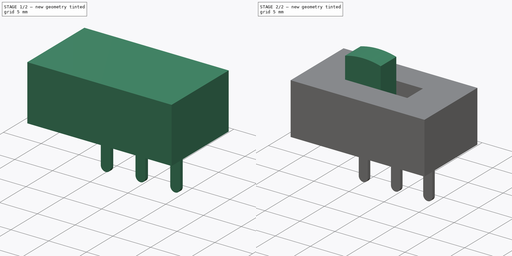
[diagram: build sequence overview — one tinted view per stage of 2, left to right]
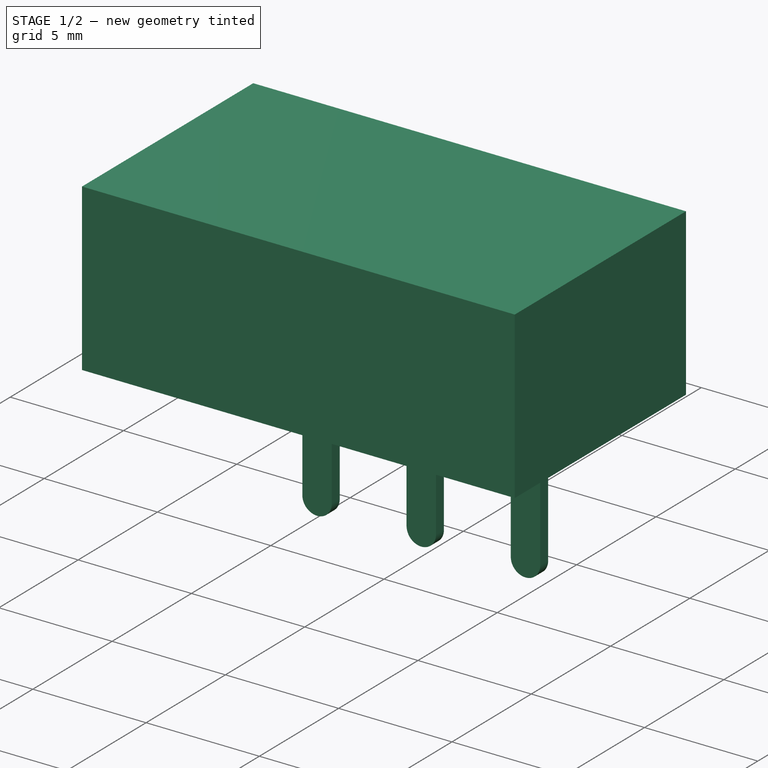
[diagram: stage 1 of 2 — iso view after this stage's code; geometry added in this stage tinted green]
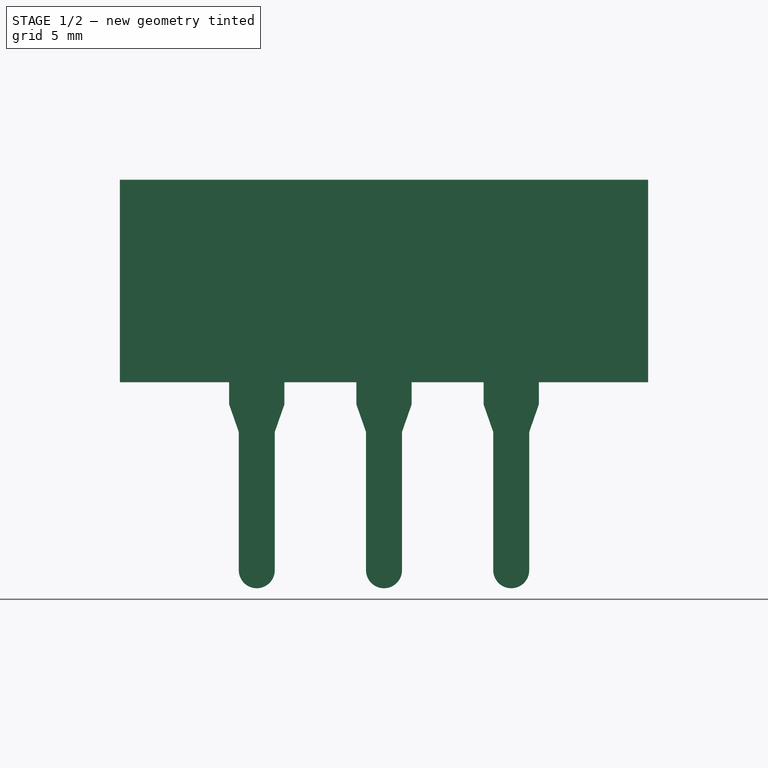
[diagram: stage 1 of 2 — front view after this stage's code; geometry added in this stage tinted green]
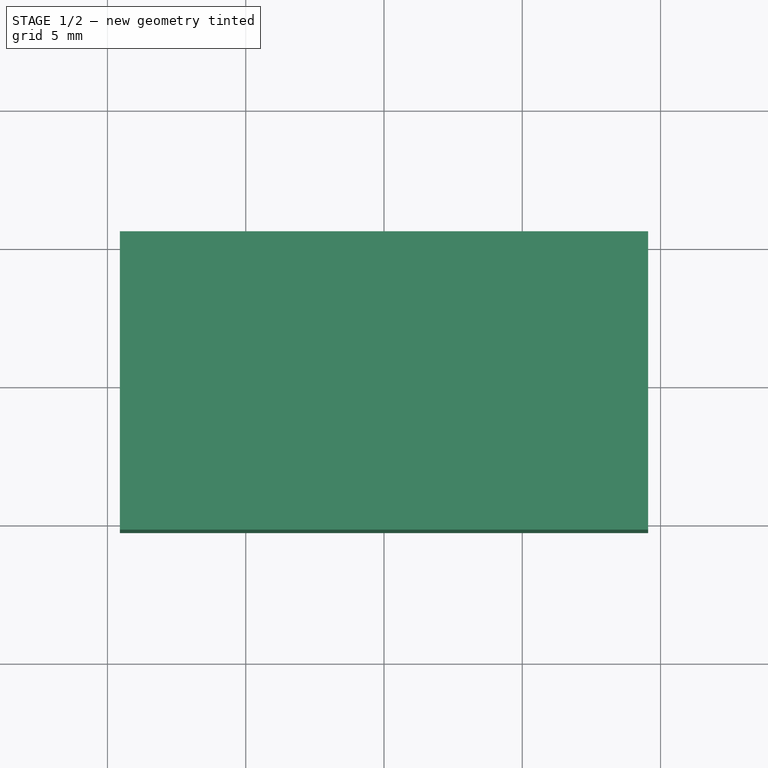
[diagram: stage 1 of 2 — top view after this stage's code; geometry added in this stage tinted green]
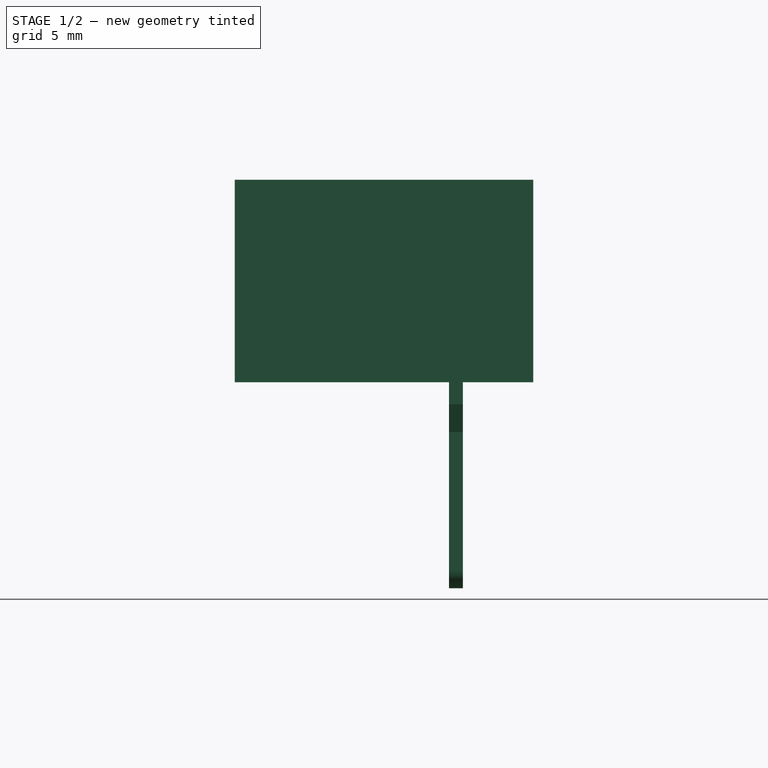
[diagram: stage 1 of 2 — right view after this stage's code; geometry added in this stage tinted green]
FCSTD DOCUMENT  (FreeCAD 0.20R29410 (Git))
Label: SlidingSwitch
License: All rights reserved
LicenseURL: http://en.wikipedia.org/wiki/All_rights_reserved
objects: Sketcher::SketchObject×4, PartDesign::Pad×2, PartDesign::Pocket×1, PartDesign::Body×1, App::DocumentObjectGroup×1, PartDesign::LinearPattern×1
note: 12 computed .brp shape members not serialized (recipe doc carries the construction recipe); baked Part::Feature solids carry a one-line shape summary decoded from their .brp

FEATURE [Sketcher::SketchObject] Sketch  label="Base"
  FullyConstrained = true
  MapMode = 5
  Support = -> [XY_Plane]
  sketch-geometry (5):
    g0: LineSegment StartX=-9.55 StartY=-5.395 StartZ=0 EndX=-9.55 EndY=5.395 EndZ=0
    g1: LineSegment StartX=-9.55 StartY=5.395 StartZ=0 EndX=9.55 EndY=5.395 EndZ=0
    g2: LineSegment StartX=9.55 StartY=5.395 StartZ=0 EndX=9.55 EndY=-5.395 EndZ=0
    g3: LineSegment StartX=9.55 StartY=-5.395 StartZ=0 EndX=-9.55 EndY=-5.395 EndZ=0
    g4: GeomPoint X=0 Y=0 Z=0
  constraints (12):
    c: DistanceY(g0,g0) = 10.79
    c: DistanceX(g1,g1) = 19.1
    c: Parallel(g3,g1)
    c: Parallel(g0,g2)
    c: Coincident(g0,g1)
    c: Coincident(g2,g1)
    c: Coincident(g3,g2)
    c: Coincident(g3,g0)
    c: Perpendicular(g1,g0)
    c: Horizontal(g1)
    c: Symmetric(g0,g1,g4)
    c: Coincident(g4,g-1)
FEATURE [PartDesign::Pad] Pad  label="Box"
  Direction = (0,0,1)
  Length = 7.32
  Length2 = 10
  Profile = -> Sketch
  ReferenceAxis = -> Sketch [N_Axis]
  Type = 0
FEATURE [PartDesign::Body] Body
  Group = -> [Sketch,Pad,Sketch001,Pocket,Sketch003,Sketch002,Pad001]
  Origin = -> Origin
  Tip = -> Pad001
FEATURE [App::DocumentObjectGroup] Group
  Group = -> [Body]
FEATURE [PartDesign::LinearPattern] LinearPattern
  Direction = -> Sketch003 [H_Axis]
  Length = 9.2
  Occurrences = 3
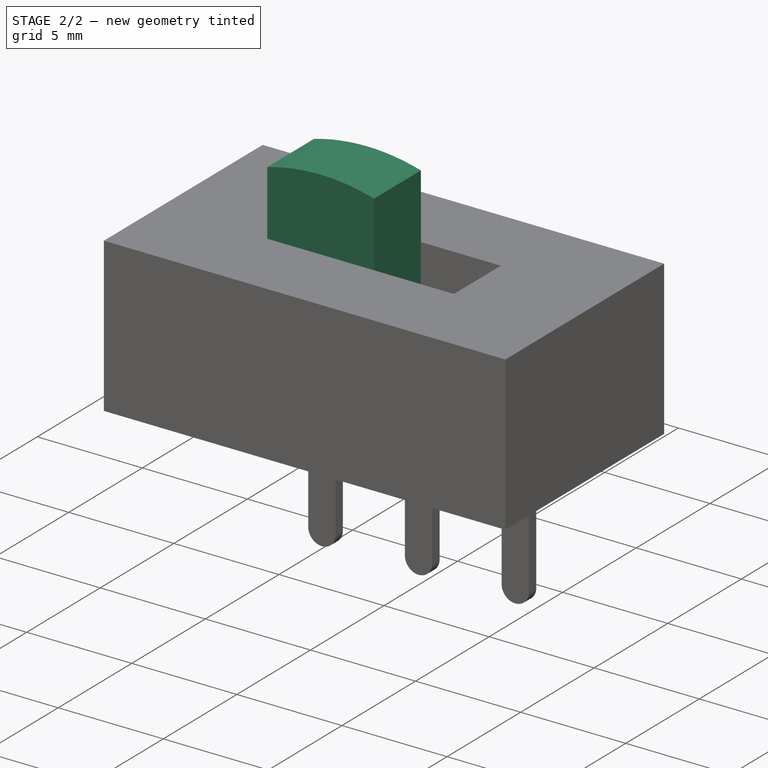
[diagram: stage 2 of 2 — iso view after this stage's code; geometry added in this stage tinted green]
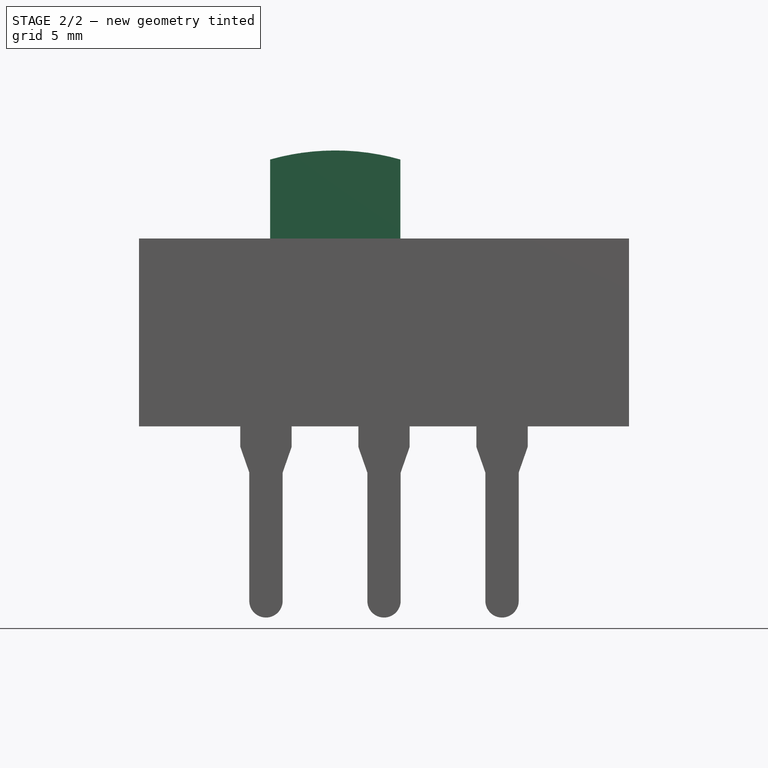
[diagram: stage 2 of 2 — front view after this stage's code; geometry added in this stage tinted green]
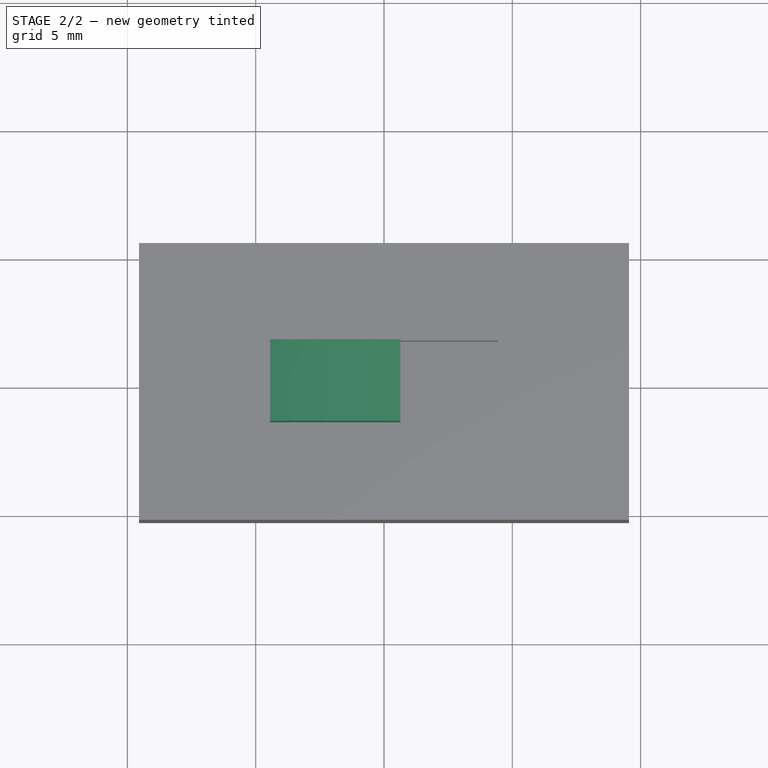
[diagram: stage 2 of 2 — top view after this stage's code; geometry added in this stage tinted green]
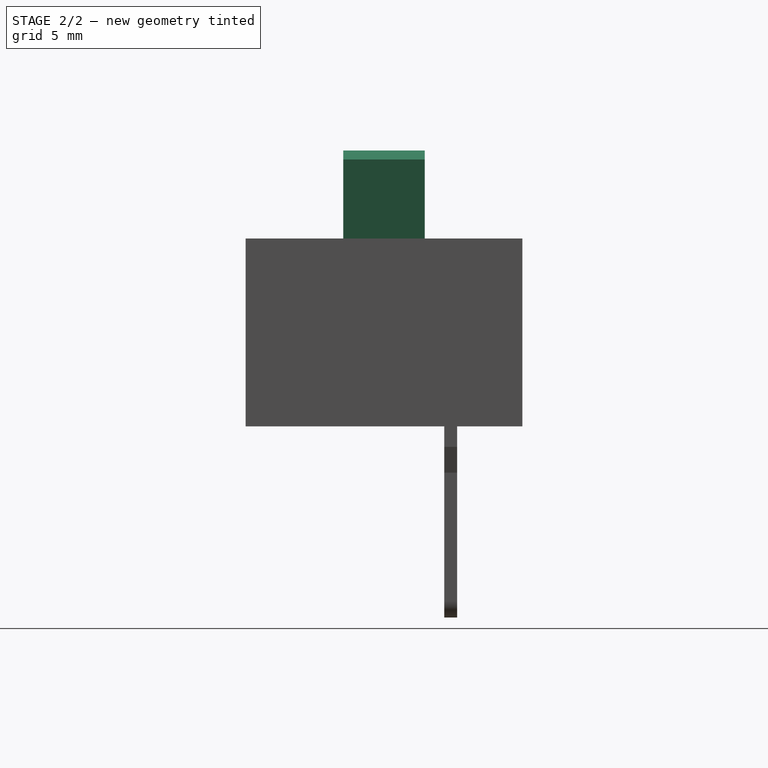
[diagram: stage 2 of 2 — right view after this stage's code; geometry added in this stage tinted green]
FEATURE [Sketcher::SketchObject] Sketch001  label="Hole base"
  FullyConstrained = true
  MapMode = 5
  Placement = pos=(0,0,7.32) rot=(0,0,1;0rad)
  Support = -> [Pad]
  sketch-geometry (5):
    g0: LineSegment StartX=-4.445 StartY=1.59 StartZ=0 EndX=-4.445 EndY=-1.59 EndZ=0
    g1: LineSegment StartX=-4.445 StartY=-1.59 StartZ=0 EndX=4.445 EndY=-1.59 EndZ=0
    g2: LineSegment StartX=4.445 StartY=-1.59 StartZ=0 EndX=4.445 EndY=1.59 EndZ=0
    g3: LineSegment StartX=4.445 StartY=1.59 StartZ=0 EndX=-4.445 EndY=1.59 EndZ=0
    g4: GeomPoint X=0 Y=0 Z=0
  constraints (12):
    c: Coincident(g0,g1)
    c: Coincident(g1,g2)
    c: Coincident(g2,g3)
    c: Coincident(g3,g0)
    c: Horizontal(g1)
    c: Horizontal(g3)
    c: Vertical(g0)
    c: Vertical(g2)
    c: Symmetric(g1,g0,g4)
    c: Coincident(g4,g-1)
    c: Distance(g1) = 8.89
    c: Distance(g2) = 3.18
FEATURE [PartDesign::Pocket] Pocket
  BaseFeature = -> Pad
  Direction = (0,0,-1)
  Length = 2
  Length2 = 5
  Profile = -> Sketch001
  ReferenceAxis = -> Sketch001 [N_Axis]
  Type = 0
FEATURE [Sketcher::SketchObject] Sketch002
  FullyConstrained = false
  MapMode = 5
  Placement = pos=(0,0,0) rot=(1,0,0;1.5708rad)
  Support = -> [XZ_Plane]
  sketch-geometry (4):
    g0: LineSegment StartX=-4.44 StartY=5.32 StartZ=0 EndX=-4.44 EndY=10.4 EndZ=0
    g1: LineSegment StartX=-4.44 StartY=5.32 StartZ=0 EndX=0.64 EndY=5.32 EndZ=0
    g2: LineSegment StartX=0.64 StartY=5.32 StartZ=0 EndX=0.64 EndY=10.4 EndZ=0
    g3: ArcOfCircle CenterX=-1.9 CenterY=1.43515 CenterZ=0 NormalX=0 NormalY=0 NormalZ=1 AngleXU=0 Radius=9.31773 StartAngle=1.2947 EndAngle=1.84689
  constraints (12):
    c: DistanceY(g0,g0) = 5.08
    c: Coincident(g1,g0)
    c: Horizontal(g1)
    c: Vertical(g0)
    c: DistanceX(g1,g1) = 5.08
    c: Coincident(g2,g1)
    c: Vertical(g2)
    c: Equal(g0,g2)
    c: Coincident(g3,g0)
    c: Coincident(g3,g2)
    c: DistanceX(g0) = -4.44
    c: DistanceY(g0) = 5.32
FEATURE [Sketcher::SketchObject] Sketch003  label="Leg001"
  AttachmentOffset = pos=(0,0,-2.85) rot=(0,0,1;0rad)
  FullyConstrained = true
  MapMode = 5
  Placement = pos=(0,2.85,6e-16) rot=(1,0,0;1.5708rad)
  Support = -> [XZ_Plane]
  sketch-geometry (10):
    g0: LineSegment StartX=-5.25 StartY=-6.8 StartZ=0 EndX=-5.25 EndY=-1.8 EndZ=0
    g1: LineSegment StartX=-5.25 StartY=-1.8 StartZ=0 EndX=-5.6 EndY=-0.8 EndZ=0
    g2: LineSegment StartX=-5.6 StartY=-0.8 StartZ=0 EndX=-5.6 EndY=0 EndZ=0
    g3: LineSegment StartX=-5.6 StartY=0 StartZ=0 EndX=-3.6 EndY=0 EndZ=0
    g4: LineSegment StartX=-3.6 StartY=0 StartZ=0 EndX=-3.6 EndY=-0.8 EndZ=0
    g5: LineSegment StartX=-3.6 StartY=-0.8 StartZ=0 EndX=-3.95 EndY=-1.8 EndZ=0
    g6: LineSegment StartX=-3.95 StartY=-1.8 StartZ=0 EndX=-3.95 EndY=-6.8 EndZ=0
    g7: ArcOfCircle CenterX=-4.6 CenterY=-6.8 CenterZ=0 NormalX=0 NormalY=0 NormalZ=1 AngleXU=0 Radius=0.65 StartAngle=3.14159 EndAngle=6.28319
    g8: GeomPoint X=-4.6 Y=-1.8 Z=0
    g9: LineSegment StartX=-4.6 StartY=-6.8 StartZ=0 EndX=-4.6 EndY=-1.8 EndZ=0
  constraints (26):
    c: Vertical(g0)
    c: Coincident(g0,g1)
    c: Coincident(g1,g2)
    c: Coincident(g2,g3)
    c: Horizontal(g3)
    c: Coincident(g3,g4)
    c: Coincident(g4,g5)
    c: Coincident(g5,g6)
    c: DistanceX(g3,g3) = 2
    c: DistanceY(g0,g0) = 5
    c: Equal(g0,g6)
    c: DistanceY(g6,g3) = 6.8
    c: Equal(g1,g5)
    c: DistanceX(g0,g6) = 1.3
    c: Tangent(g7,g6) = 1.5708
    c: Coincident(g7,g0)
    c: Symmetric(g0,g5,g8)
    c: Coincident(g9,g7)
    c: Coincident(g9,g8)
    c: Symmetric(g2,g3,g9)
    c: DistanceY(g4,g4) = 0.8
    c: Vertical(g4)
    c: Vertical(g2)
    c: Equal(g2,g4)
    c: DistanceX(g8) = -4.6
    c: DistanceY(g2) = 0
FEATURE [PartDesign::Pad] Pad001  label="Body001"
  BaseFeature = -> Pocket
  Direction = (0,-1,-2e-16)
  Length = 3.18
  Length2 = 10
  Midplane = true
  Profile = -> Sketch002
  ReferenceAxis = -> Sketch002 [N_Axis]
  Type = 0
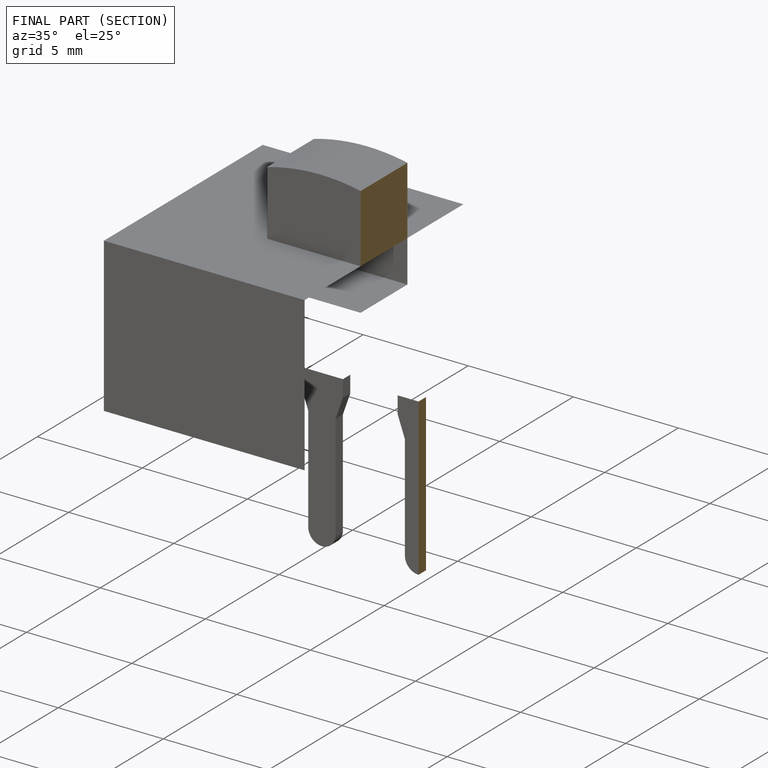
[diagram: finished part — half-section view (interior)]
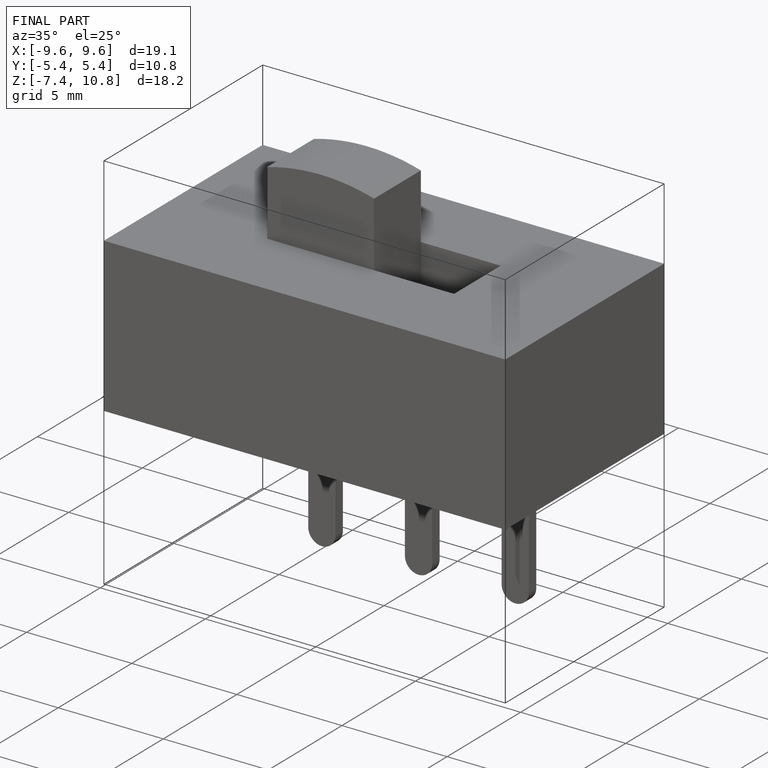
[diagram: finished part — iso view with bounding-box wireframe]
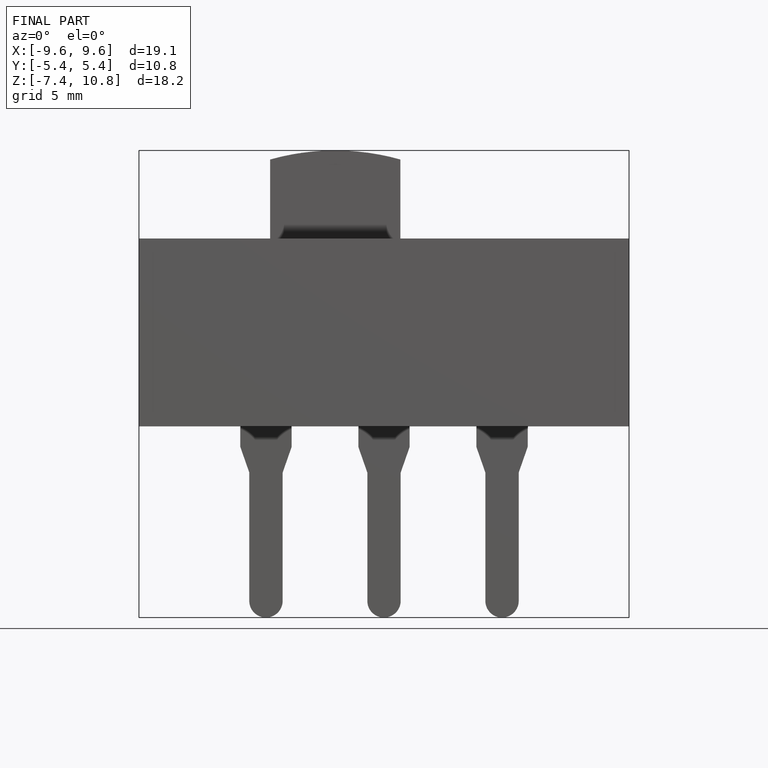
[diagram: finished part — front view with bounding-box wireframe]
